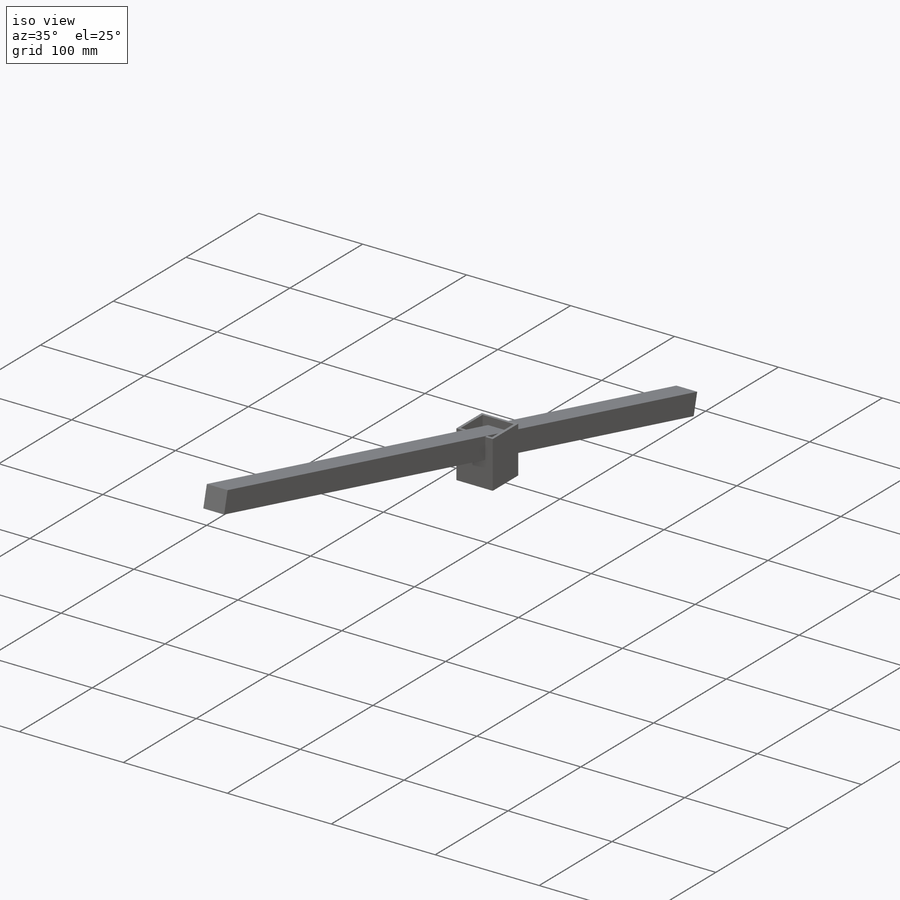
[diagram: iso view]
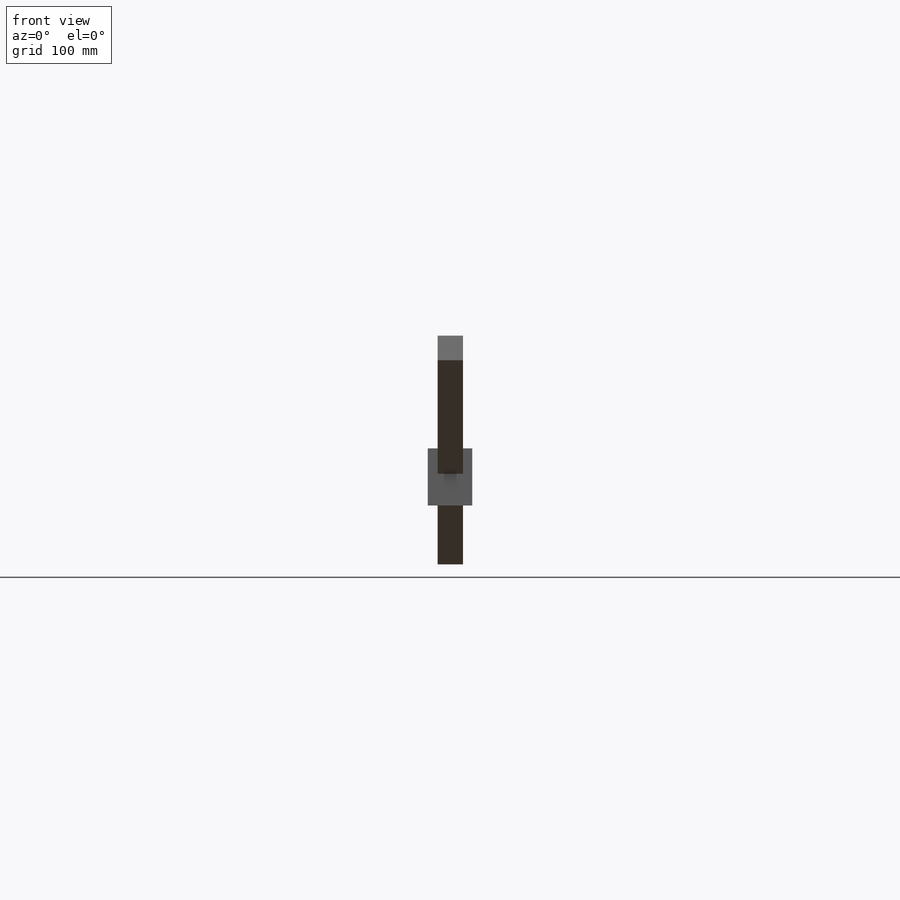
[diagram: front view]
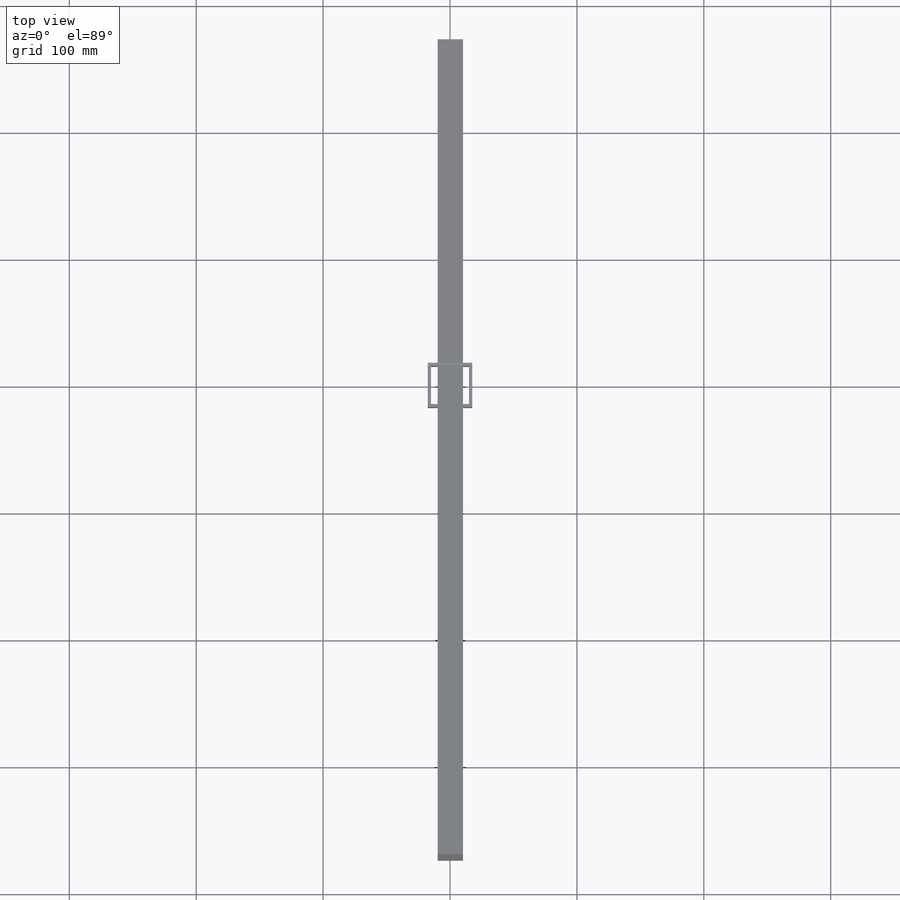
[diagram: top view]
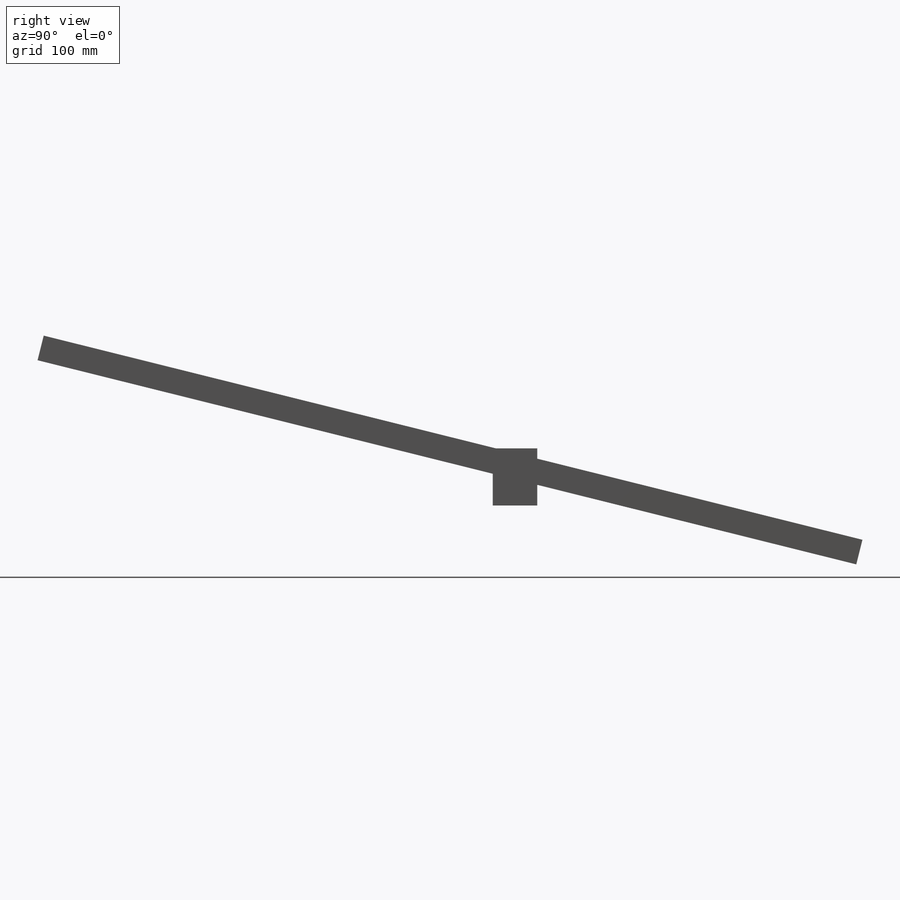
[diagram: right view]
SOLIDWORKS PART (.sldprt)
format: sldprt  version: not decoded by parser v0  size: 186,880 bytes
history: native  units: mm
features: sketch x4, extrude x2, material x1 (+12 scaffold rows collapsed)
feature tree (19):
  scaffold x12  (default folders/planes/origin — collapsed)
  material  "Material <not specified>"
  sketch  "Sketch1"  dims[D1=30.0mm D2=30.0mm D3=35.0mm D4=35.0mm]
  extrude  "Boss-Extrude1"  Depth=45mm
  sketch  "Angled Plane"  dims[D1=14.0deg]
  sketch  "Sketch5"  dims[D1=20.0mm D2=20.0mm D3=7.25mm]
  extrude  "Boss-Extrude3"  Depth=302.5mm
  sketch  "3DSketch10"  dims[c1.D1=166.0deg c1.D2=20.0mm c1.D3=20.0mm c1.D4=0.0mm c2.D4=~19.16277mm c2.D5=20.0mm c3.D4=7.25mm]
decode coverage: 6 of 6 modeling features carry decoded parameters
note: ~ marks probable driven/reference dimensions
note: suppression state not decoded; provenance and decode notes live in map.json
